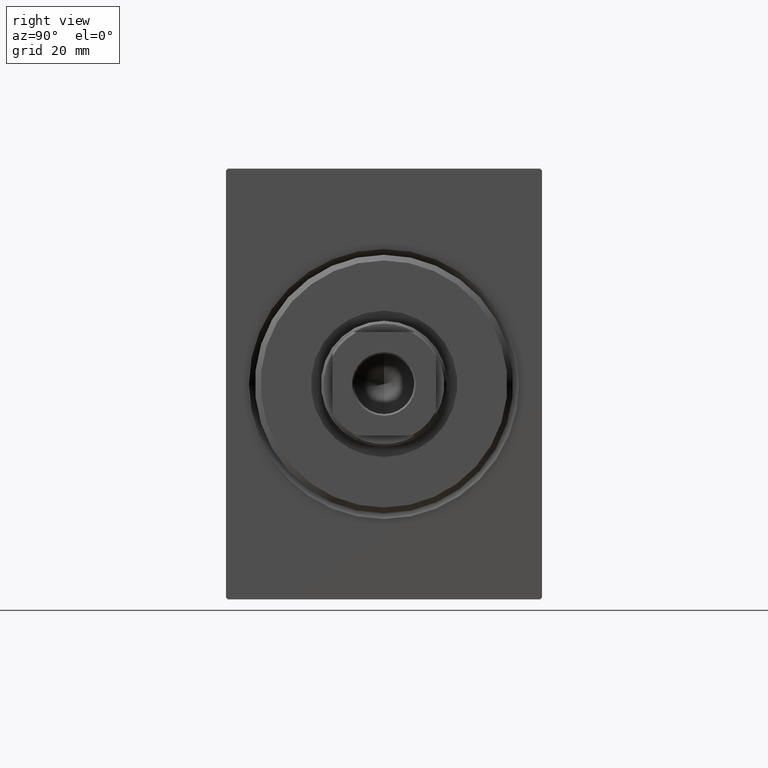
[diagram: clean part render]
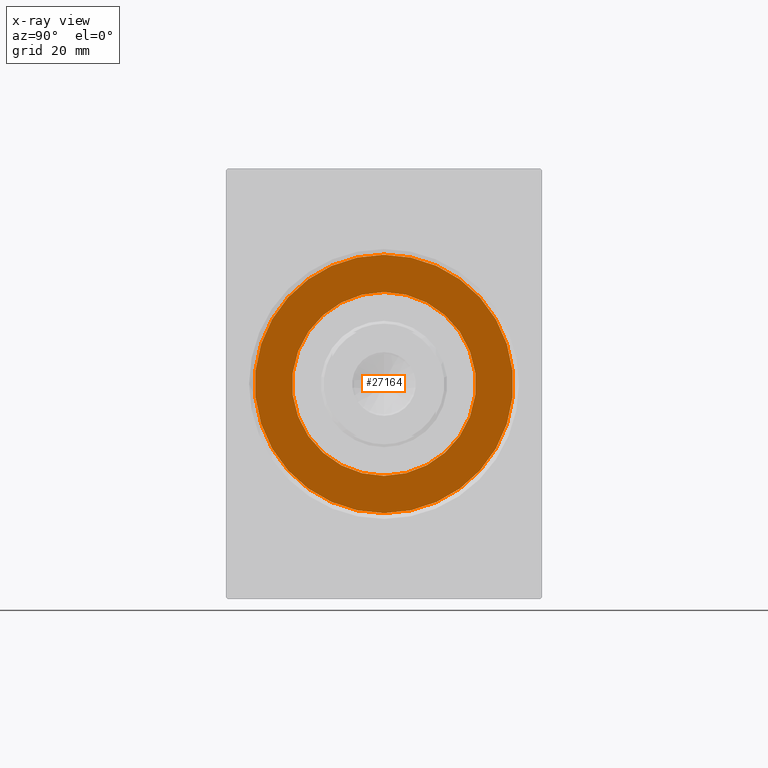
[diagram: x-ray — body ghosted, one internal face saturated and labeled with its STEP entity id]
A machine part, right view, then the same camera in x-ray: the body is ghosted and one INTERNAL B-rep face — a face not visible from any outside direction — is saturated and labeled: STEP entity #27164.
In plain terms, the highlighted planar face has unit normal (1, 0, -0).
Its self-contained STEP definition (entity closure, byte-faithful):
#130 = CIRCLE ( 'NONE', #40620, 16.00000000000000000 ) ;
#228 = CIRCLE ( 'NONE', #24908, 22.50000000000000355 ) ;
#734 = ORIENTED_EDGE ( 'NONE', *, *, #18242, .T. ) ;
#2949 = EDGE_CURVE ( 'NONE', #22627, #12269, #18750, .T. ) ;
#3664 = AXIS2_PLACEMENT_3D ( 'NONE', #7976, #13546, #39799 ) ;
#4107 = CARTESIAN_POINT ( 'NONE',  ( 5.000000000000000000, 0.000000000000000000, 0.000000000000000000 ) ) ;
#5162 = CARTESIAN_POINT ( 'NONE',  ( 5.000000000000000000, 0.000000000000000000, 0.000000000000000000 ) ) ;
#6212 = DIRECTION ( 'NONE',  ( 0.000000000000000000, 0.000000000000000000, 1.000000000000000000 ) ) ;
#6425 = PLANE ( 'NONE',  #7775 ) ;
#7775 = AXIS2_PLACEMENT_3D ( 'NONE', #16289, #28984, #6212 ) ;
#7955 = DIRECTION ( 'NONE',  ( 0.000000000000000000, 0.000000000000000000, 1.000000000000000000 ) ) ;
#7976 = CARTESIAN_POINT ( 'NONE',  ( 4.999999999999997335, 0.000000000000000000, 0.000000000000000000 ) ) ;
#8731 = CARTESIAN_POINT ( 'NONE',  ( 4.999999999999997335, 0.000000000000000000, 0.000000000000000000 ) ) ;
#8993 = FACE_BOUND ( 'NONE', #22973, .T. ) ;
#12269 = VERTEX_POINT ( 'NONE', #20440 ) ;
#13546 = DIRECTION ( 'NONE',  ( -1.000000000000000000, 0.000000000000000000, 0.000000000000000000 ) ) ;
#16289 = CARTESIAN_POINT ( 'NONE',  ( 5.000000000000000000, 0.000000000000000000, 0.000000000000000000 ) ) ;
#17218 = DIRECTION ( 'NONE',  ( -1.000000000000000000, 0.000000000000000000, 0.000000000000000000 ) ) ;
#17345 = EDGE_LOOP ( 'NONE', ( #734, #17615 ) ) ;
#17615 = ORIENTED_EDGE ( 'NONE', *, *, #25760, .T. ) ;
#18242 = EDGE_CURVE ( 'NONE', #32295, #30855, #19233, .T. ) ;
#18750 = CIRCLE ( 'NONE', #3664, 16.00000000000000000 ) ;
#18833 = DIRECTION ( 'NONE',  ( 0.000000000000000000, 0.000000000000000000, 1.000000000000000000 ) ) ;
#19233 = CIRCLE ( 'NONE', #26077, 22.50000000000000355 ) ;
#19763 = ORIENTED_EDGE ( 'NONE', *, *, #23407, .F. ) ;
#20440 = CARTESIAN_POINT ( 'NONE',  ( 4.999999999999997335, 1.959434878635765131E-15, -16.00000000000000000 ) ) ;
#22627 = VERTEX_POINT ( 'NONE', #41629 ) ;
#22973 = EDGE_LOOP ( 'NONE', ( #28767, #19763 ) ) ;
#23407 = EDGE_CURVE ( 'NONE', #12269, #22627, #130, .T. ) ;
#23843 = DIRECTION ( 'NONE',  ( -1.000000000000000000, 0.000000000000000000, 0.000000000000000000 ) ) ;
#24908 = AXIS2_PLACEMENT_3D ( 'NONE', #4107, #17218, #30333 ) ;
#25760 = EDGE_CURVE ( 'NONE', #30855, #32295, #228, .T. ) ;
#26070 = CARTESIAN_POINT ( 'NONE',  ( 5.000000000000000000, 0.000000000000000000, 22.50000000000000355 ) ) ;
#26077 = AXIS2_PLACEMENT_3D ( 'NONE', #5162, #23843, #7955 ) ;
#27164 = ADVANCED_FACE ( 'NONE', ( #8993, #36074 ), #6425, .T. ) ;
#28767 = ORIENTED_EDGE ( 'NONE', *, *, #2949, .F. ) ;
#28984 = DIRECTION ( 'NONE',  ( -1.000000000000000000, 0.000000000000000000, 0.000000000000000000 ) ) ;
#30333 = DIRECTION ( 'NONE',  ( 0.000000000000000000, 0.000000000000000000, 1.000000000000000000 ) ) ;
#30855 = VERTEX_POINT ( 'NONE', #38008 ) ;
#32295 = VERTEX_POINT ( 'NONE', #26070 ) ;
#34953 = DIRECTION ( 'NONE',  ( -1.000000000000000000, 0.000000000000000000, 0.000000000000000000 ) ) ;
#36074 = FACE_OUTER_BOUND ( 'NONE', #17345, .T. ) ;
#38008 = CARTESIAN_POINT ( 'NONE',  ( 5.000000000000000000, 2.755455298081545172E-15, -22.50000000000000355 ) ) ;
#39799 = DIRECTION ( 'NONE',  ( 0.000000000000000000, 0.000000000000000000, 1.000000000000000000 ) ) ;
#40620 = AXIS2_PLACEMENT_3D ( 'NONE', #8731, #34953, #18833 ) ;
#41629 = CARTESIAN_POINT ( 'NONE',  ( 4.999999999999997335, 0.000000000000000000, 16.00000000000000000 ) ) ;